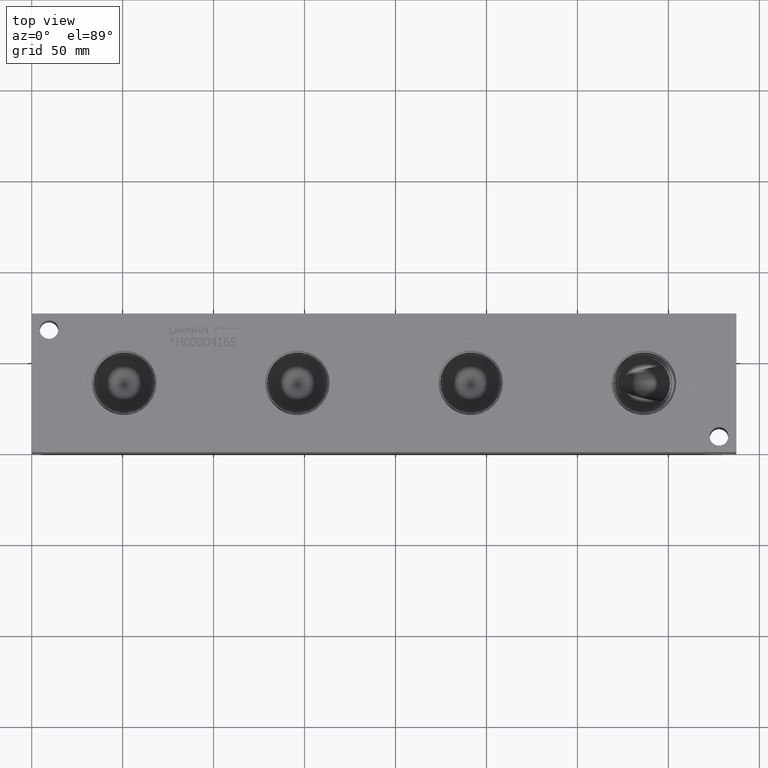
[diagram: clean part render]
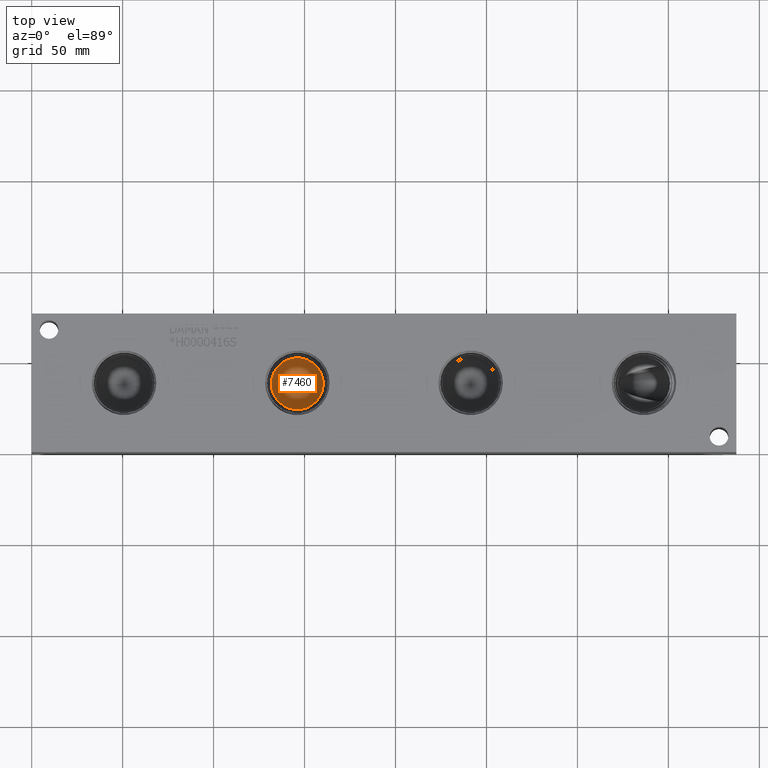
[diagram: same view with one face highlighted and labeled with its STEP entity id]
A machine part, top view. The second image highlights one B-rep face of the part: STEP entity #7460.
In plain terms, the highlighted conical surface has half-angle 60 deg.
Its self-contained STEP definition (entity closure, byte-faithful):
#31=CONICAL_SURFACE('',#7865,7.14375,1.0471975511966);
#176=CIRCLE('',#7866,14.2875);
#177=CIRCLE('',#7867,14.2875);
#895=FACE_OUTER_BOUND('',#1320,.T.);
#1320=EDGE_LOOP('',(#6434,#6435,#6436,#6437));
#2050=LINE('',#12729,#2764);
#2764=VECTOR('',#9343,7.14375);
#3446=VERTEX_POINT('',#12725);
#3447=VERTEX_POINT('',#12726);
#3448=VERTEX_POINT('',#12728);
#4457=EDGE_CURVE('',#3446,#3447,#176,.T.);
#4458=EDGE_CURVE('',#3447,#3448,#2050,.T.);
#4459=EDGE_CURVE('',#3447,#3446,#177,.T.);
#6434=ORIENTED_EDGE('',*,*,#4457,.T.);
#6435=ORIENTED_EDGE('',*,*,#4458,.T.);
#6436=ORIENTED_EDGE('',*,*,#4458,.F.);
#6437=ORIENTED_EDGE('',*,*,#4459,.T.);
#7460=ADVANCED_FACE('',(#895),#31,.F.);
#7865=AXIS2_PLACEMENT_3D('',#12724,#9339,#9340);
#7866=AXIS2_PLACEMENT_3D('',#12727,#9341,#9342);
#7867=AXIS2_PLACEMENT_3D('',#12730,#9344,#9345);
#9339=DIRECTION('center_axis',(0.,0.,1.));
#9340=DIRECTION('ref_axis',(1.,0.,0.));
#9341=DIRECTION('center_axis',(0.,0.,1.));
#9342=DIRECTION('ref_axis',(1.,0.,0.));
#9343=DIRECTION('',(0.866025403784438,1.06057523872491E-16,-0.5));
#9344=DIRECTION('center_axis',(0.,0.,1.));
#9345=DIRECTION('ref_axis',(1.,0.,0.));
#12724=CARTESIAN_POINT('Origin',(146.05,38.1,39.4274940144766));
#12725=CARTESIAN_POINT('',(160.3375,38.1,43.55194));
#12726=CARTESIAN_POINT('',(131.7625,38.1,43.55194));
#12727=CARTESIAN_POINT('Origin',(146.05,38.1,43.55194));
#12728=CARTESIAN_POINT('',(146.05,38.1,35.3030480289532));
#12729=CARTESIAN_POINT('',(138.90625,38.1,39.4274940144766));
#12730=CARTESIAN_POINT('Origin',(146.05,38.1,43.55194));